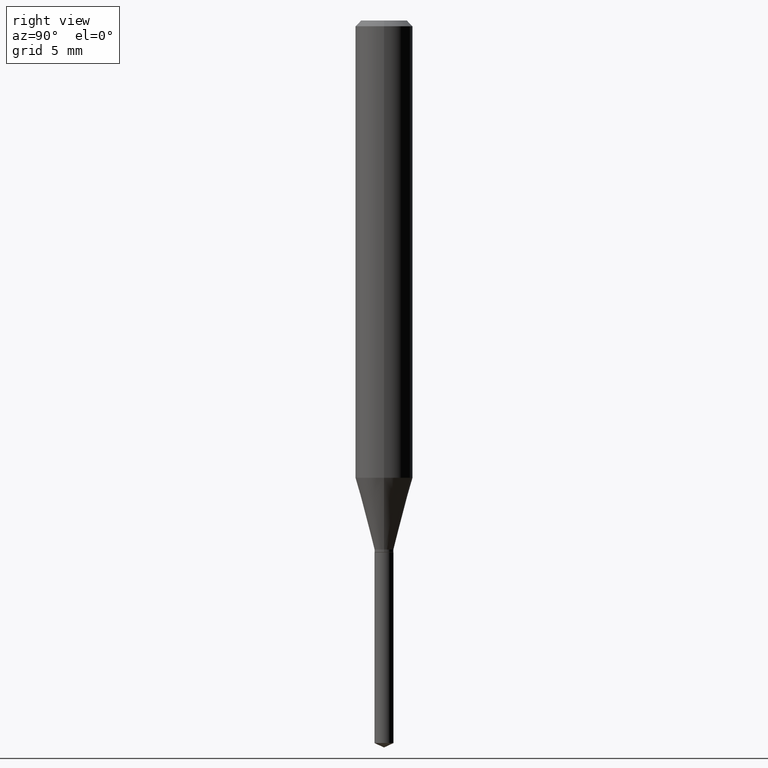
[diagram: clean part render]
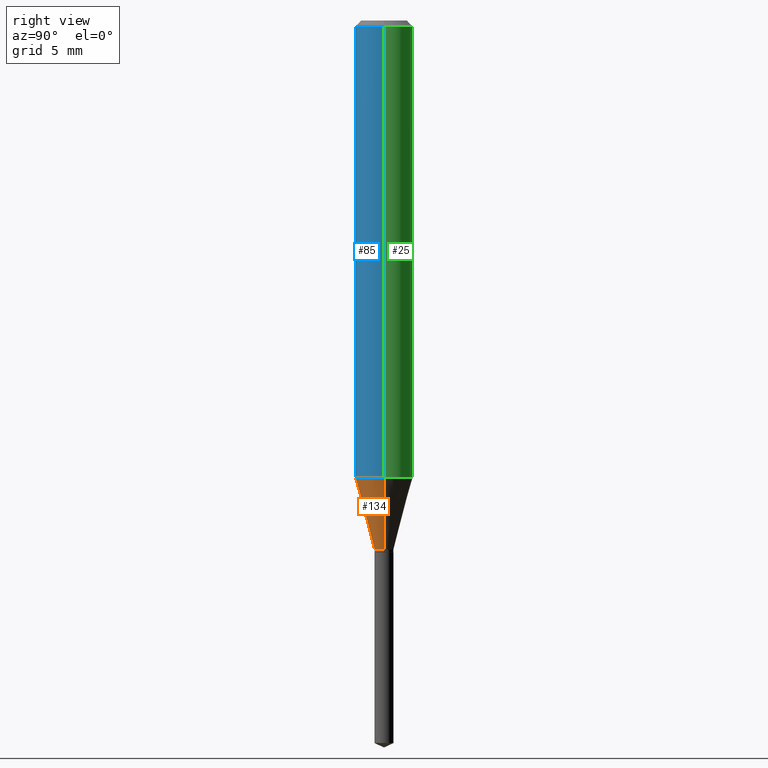
[diagram: same view with three faces highlighted in distinct colors, each labeled with its STEP entity id]
A machine part, right view with three faces highlighted in distinct colors.
Their STEP definitions:

[orange] entity #134 — the highlighted conical surface has half-angle 15 deg.
#1 = LINE ( 'NONE', #167, #38 ) ;
#10 = DIRECTION ( 'NONE',  ( -2.445468806185136597E-29, 3.491481338843145583E-15, 1.000000000000000000 ) ) ;
#28 = ORIENTED_EDGE ( 'NONE', *, *, #58, .F. ) ;
#38 = VECTOR ( 'NONE', #44, 39.37007874015748854 ) ;
#44 = DIRECTION ( 'NONE',  ( 0.2588190451025211281, 1.565188264969622954E-15, 0.9659258262890679791 ) ) ;
#51 = VERTEX_POINT ( 'NONE', #345 ) ;
#54 = ORIENTED_EDGE ( 'NONE', *, *, #475, .T. ) ;
#58 = EDGE_CURVE ( 'NONE', #476, #438, #129, .T. ) ;
#129 = CIRCLE ( 'NONE', #321, 0.05905000000000010935 ) ;
#131 = DIRECTION ( 'NONE',  ( 1.000000000000000000, -6.982962677686267499E-15, 0.000000000000000000 ) ) ;
#134 = ADVANCED_FACE ( 'NONE', ( #353 ), #400, .T. ) ;
#167 = CARTESIAN_POINT ( 'NONE',  ( 0.01949999999999999997, -3.936994357679530254E-15, -1.088600000000000012 ) ) ;
#173 = DIRECTION ( 'NONE',  ( -2.445468806185136597E-29, 3.491481338843145583E-15, 1.000000000000000000 ) ) ;
#197 = CARTESIAN_POINT ( 'NONE',  ( -0.05905000000000010935, -2.865899343576267000E-15, -0.9409973905606506817 ) ) ;
#207 = EDGE_CURVE ( 'NONE', #51, #476, #351, .T. ) ;
#249 = CARTESIAN_POINT ( 'NONE',  ( 2.662137342413139764E-29, -3.800826585464648242E-15, -1.088600000000000012 ) ) ;
#252 = VECTOR ( 'NONE', #424, 39.37007874015748854 ) ;
#273 = CARTESIAN_POINT ( 'NONE',  ( 2.301179765317683209E-29, -3.285474829042607282E-15, -0.9409973905606506817 ) ) ;
#287 = DIRECTION ( 'NONE',  ( 1.000000000000000000, -6.982962677686258033E-15, 0.000000000000000000 ) ) ;
#301 = VERTEX_POINT ( 'NONE', #401 ) ;
#312 = EDGE_LOOP ( 'NONE', ( #419, #54, #328, #28 ) ) ;
#314 = CIRCLE ( 'NONE', #478, 0.01949999999999999997 ) ;
#321 = AXIS2_PLACEMENT_3D ( 'NONE', #273, #10, #131 ) ;
#328 = ORIENTED_EDGE ( 'NONE', *, *, #420, .T. ) ;
#345 = CARTESIAN_POINT ( 'NONE',  ( -0.01949999999999999997, -3.671697751606305097E-15, -1.088600000000000012 ) ) ;
#351 = LINE ( 'NONE', #427, #252 ) ;
#353 = FACE_OUTER_BOUND ( 'NONE', #312, .T. ) ;
#400 = CONICAL_SURFACE ( 'NONE', #439, 0.01949999999999999997, 0.2617993877991498519 ) ;
#401 = CARTESIAN_POINT ( 'NONE',  ( 0.01949999999999999997, -3.936994357679530254E-15, -1.088600000000000012 ) ) ;
#411 = DIRECTION ( 'NONE',  ( 1.000000000000000000, -6.982962677686258033E-15, 0.000000000000000000 ) ) ;
#415 = CARTESIAN_POINT ( 'NONE',  ( 2.662137342413139764E-29, -3.800826585464648242E-15, -1.088600000000000012 ) ) ;
#419 = ORIENTED_EDGE ( 'NONE', *, *, #207, .F. ) ;
#420 = EDGE_CURVE ( 'NONE', #301, #438, #1, .T. ) ;
#424 = DIRECTION ( 'NONE',  ( -0.2588190451025211281, 5.211531920934547886E-15, 0.9659258262890679791 ) ) ;
#427 = CARTESIAN_POINT ( 'NONE',  ( -0.01949999999999999997, -3.662270751991428189E-15, -1.088600000000000012 ) ) ;
#438 = VERTEX_POINT ( 'NONE', #449 ) ;
#439 = AXIS2_PLACEMENT_3D ( 'NONE', #249, #173, #287 ) ;
#449 = CARTESIAN_POINT ( 'NONE',  ( 0.05905000000000010935, -3.697818775159981807E-15, -0.9409973905606506817 ) ) ;
#457 = DIRECTION ( 'NONE',  ( -2.445468806185136597E-29, 3.491481338843145583E-15, 1.000000000000000000 ) ) ;
#475 = EDGE_CURVE ( 'NONE', #51, #301, #314, .T. ) ;
#476 = VERTEX_POINT ( 'NONE', #197 ) ;
#478 = AXIS2_PLACEMENT_3D ( 'NONE', #415, #457, #411 ) ;

[blue] entity #85 — the highlighted cylindrical surface (edge-blend (fillet) strip) has radius 1.4999 mm, axis along (-0, 0, 1).
#10 = DIRECTION ( 'NONE',  ( -2.445468806185136597E-29, 3.491481338843145583E-15, 1.000000000000000000 ) ) ;
#15 = CARTESIAN_POINT ( 'NONE',  ( 2.888098660104663328E-31, -4.123439461173779030E-17, -0.01181000000000006871 ) ) ;
#42 = EDGE_CURVE ( 'NONE', #476, #190, #81, .T. ) ;
#43 = ORIENTED_EDGE ( 'NONE', *, *, #58, .T. ) ;
#46 = AXIS2_PLACEMENT_3D ( 'NONE', #15, #317, #59 ) ;
#58 = EDGE_CURVE ( 'NONE', #476, #438, #129, .T. ) ;
#59 = DIRECTION ( 'NONE',  ( 1.000000000000000000, -6.982962677686266711E-15, 0.000000000000000000 ) ) ;
#81 = LINE ( 'NONE', #237, #240 ) ;
#85 = ADVANCED_FACE ( 'NONE', ( #471 ), #395, .T. ) ;
#87 = CIRCLE ( 'NONE', #46, 0.05904999999999999832 ) ;
#95 = VECTOR ( 'NONE', #225, 39.37007874015748143 ) ;
#97 = CARTESIAN_POINT ( 'NONE',  ( 0.000000000000000000, 0.000000000000000000, 0.000000000000000000 ) ) ;
#129 = CIRCLE ( 'NONE', #321, 0.05905000000000010935 ) ;
#131 = DIRECTION ( 'NONE',  ( 1.000000000000000000, -6.982962677686267499E-15, 0.000000000000000000 ) ) ;
#145 = CARTESIAN_POINT ( 'NONE',  ( 0.05905000000000005383, -4.123439461173744271E-16, 2.879382386107502672E-30 ) ) ;
#165 = ORIENTED_EDGE ( 'NONE', *, *, #42, .F. ) ;
#190 = VERTEX_POINT ( 'NONE', #347 ) ;
#197 = CARTESIAN_POINT ( 'NONE',  ( -0.05905000000000010935, -2.865899343576267000E-15, -0.9409973905606506817 ) ) ;
#222 = EDGE_CURVE ( 'NONE', #190, #361, #87, .T. ) ;
#225 = DIRECTION ( 'NONE',  ( -2.445468806185136877E-29, 3.491481338843145188E-15, 1.000000000000000000 ) ) ;
#232 = ORIENTED_EDGE ( 'NONE', *, *, #222, .F. ) ;
#237 = CARTESIAN_POINT ( 'NONE',  ( -0.05905000000000005383, 4.195754854663395423E-16, -2.904631170795524694E-30 ) ) ;
#240 = VECTOR ( 'NONE', #461, 39.37007874015748143 ) ;
#243 = EDGE_LOOP ( 'NONE', ( #165, #43, #265, #232 ) ) ;
#265 = ORIENTED_EDGE ( 'NONE', *, *, #335, .T. ) ;
#273 = CARTESIAN_POINT ( 'NONE',  ( 2.301179765317683209E-29, -3.285474829042607282E-15, -0.9409973905606506817 ) ) ;
#282 = DIRECTION ( 'NONE',  ( 1.000000000000000000, -6.982962677686266711E-15, 4.876176775795935793E-29 ) ) ;
#317 = DIRECTION ( 'NONE',  ( -2.445468806185136597E-29, 3.491481338843145583E-15, 1.000000000000000000 ) ) ;
#321 = AXIS2_PLACEMENT_3D ( 'NONE', #273, #10, #131 ) ;
#335 = EDGE_CURVE ( 'NONE', #438, #361, #474, .T. ) ;
#347 = CARTESIAN_POINT ( 'NONE',  ( -0.05904999999999999832, -1.243779126360832618E-15, -0.01181000000000006871 ) ) ;
#361 = VERTEX_POINT ( 'NONE', #481 ) ;
#387 = AXIS2_PLACEMENT_3D ( 'NONE', #97, #430, #282 ) ;
#395 = CYLINDRICAL_SURFACE ( 'NONE', #387, 0.05905000000000005383 ) ;
#430 = DIRECTION ( 'NONE',  ( -2.445468806185136597E-29, 3.491481338843145583E-15, 1.000000000000000000 ) ) ;
#438 = VERTEX_POINT ( 'NONE', #449 ) ;
#449 = CARTESIAN_POINT ( 'NONE',  ( 0.05905000000000010935, -3.697818775159981807E-15, -0.9409973905606506817 ) ) ;
#461 = DIRECTION ( 'NONE',  ( -2.445468806185136877E-29, 3.491481338843145188E-15, 1.000000000000000000 ) ) ;
#471 = FACE_OUTER_BOUND ( 'NONE', #243, .T. ) ;
#474 = LINE ( 'NONE', #145, #95 ) ;
#476 = VERTEX_POINT ( 'NONE', #197 ) ;
#481 = CARTESIAN_POINT ( 'NONE',  ( 0.05904999999999999832, -4.535783407291118600E-16, -0.01181000000000006871 ) ) ;

[green] entity #25 — the highlighted cylindrical surface (edge-blend (fillet) strip) has radius 1.4999 mm, axis along (-0, 0, 1).
#2 = ORIENTED_EDGE ( 'NONE', *, *, #42, .T. ) ;
#6 = EDGE_LOOP ( 'NONE', ( #488, #2, #330, #443 ) ) ;
#25 = ADVANCED_FACE ( 'NONE', ( #383 ), #410, .T. ) ;
#42 = EDGE_CURVE ( 'NONE', #476, #190, #81, .T. ) ;
#62 = AXIS2_PLACEMENT_3D ( 'NONE', #373, #272, #412 ) ;
#81 = LINE ( 'NONE', #237, #240 ) ;
#95 = VECTOR ( 'NONE', #225, 39.37007874015748143 ) ;
#121 = CIRCLE ( 'NONE', #253, 0.05904999999999999832 ) ;
#122 = DIRECTION ( 'NONE',  ( 1.000000000000000000, -6.982962677686266711E-15, 0.000000000000000000 ) ) ;
#145 = CARTESIAN_POINT ( 'NONE',  ( 0.05905000000000005383, -4.123439461173744271E-16, 2.879382386107502672E-30 ) ) ;
#190 = VERTEX_POINT ( 'NONE', #347 ) ;
#197 = CARTESIAN_POINT ( 'NONE',  ( -0.05905000000000010935, -2.865899343576267000E-15, -0.9409973905606506817 ) ) ;
#225 = DIRECTION ( 'NONE',  ( -2.445468806185136877E-29, 3.491481338843145188E-15, 1.000000000000000000 ) ) ;
#237 = CARTESIAN_POINT ( 'NONE',  ( -0.05905000000000005383, 4.195754854663395423E-16, -2.904631170795524694E-30 ) ) ;
#240 = VECTOR ( 'NONE', #461, 39.37007874015748143 ) ;
#253 = AXIS2_PLACEMENT_3D ( 'NONE', #371, #452, #122 ) ;
#262 = CIRCLE ( 'NONE', #426, 0.05905000000000010935 ) ;
#272 = DIRECTION ( 'NONE',  ( -2.445468806185136597E-29, 3.491481338843145583E-15, 1.000000000000000000 ) ) ;
#292 = CARTESIAN_POINT ( 'NONE',  ( 2.301179765317683209E-29, -3.285474829042607282E-15, -0.9409973905606506817 ) ) ;
#294 = EDGE_CURVE ( 'NONE', #438, #476, #262, .T. ) ;
#330 = ORIENTED_EDGE ( 'NONE', *, *, #460, .F. ) ;
#335 = EDGE_CURVE ( 'NONE', #438, #361, #474, .T. ) ;
#347 = CARTESIAN_POINT ( 'NONE',  ( -0.05904999999999999832, -1.243779126360832618E-15, -0.01181000000000006871 ) ) ;
#361 = VERTEX_POINT ( 'NONE', #481 ) ;
#371 = CARTESIAN_POINT ( 'NONE',  ( 2.888098660104663328E-31, -4.123439461173779030E-17, -0.01181000000000006871 ) ) ;
#373 = CARTESIAN_POINT ( 'NONE',  ( 0.000000000000000000, 0.000000000000000000, 0.000000000000000000 ) ) ;
#383 = FACE_OUTER_BOUND ( 'NONE', #6, .T. ) ;
#398 = DIRECTION ( 'NONE',  ( 1.000000000000000000, -6.982962677686267499E-15, 0.000000000000000000 ) ) ;
#410 = CYLINDRICAL_SURFACE ( 'NONE', #62, 0.05905000000000005383 ) ;
#412 = DIRECTION ( 'NONE',  ( 1.000000000000000000, -6.982962677686266711E-15, 4.876176775795935793E-29 ) ) ;
#426 = AXIS2_PLACEMENT_3D ( 'NONE', #292, #442, #398 ) ;
#438 = VERTEX_POINT ( 'NONE', #449 ) ;
#442 = DIRECTION ( 'NONE',  ( -2.445468806185136597E-29, 3.491481338843145583E-15, 1.000000000000000000 ) ) ;
#443 = ORIENTED_EDGE ( 'NONE', *, *, #335, .F. ) ;
#449 = CARTESIAN_POINT ( 'NONE',  ( 0.05905000000000010935, -3.697818775159981807E-15, -0.9409973905606506817 ) ) ;
#452 = DIRECTION ( 'NONE',  ( -2.445468806185136597E-29, 3.491481338843145583E-15, 1.000000000000000000 ) ) ;
#460 = EDGE_CURVE ( 'NONE', #361, #190, #121, .T. ) ;
#461 = DIRECTION ( 'NONE',  ( -2.445468806185136877E-29, 3.491481338843145188E-15, 1.000000000000000000 ) ) ;
#474 = LINE ( 'NONE', #145, #95 ) ;
#476 = VERTEX_POINT ( 'NONE', #197 ) ;
#481 = CARTESIAN_POINT ( 'NONE',  ( 0.05904999999999999832, -4.535783407291118600E-16, -0.01181000000000006871 ) ) ;
#488 = ORIENTED_EDGE ( 'NONE', *, *, #294, .T. ) ;